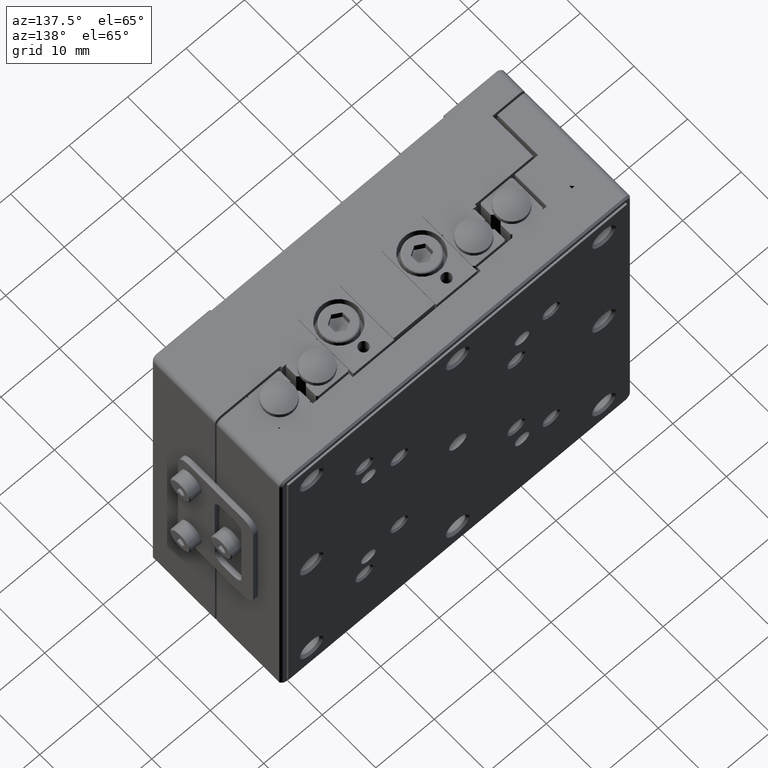
[diagram: clean part render]
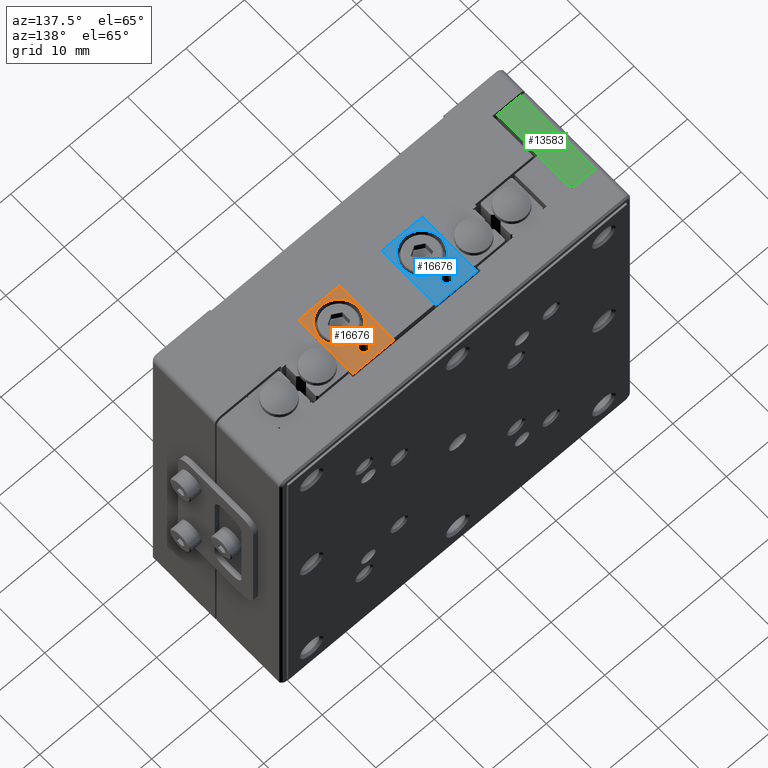
[diagram: same view with three faces highlighted in distinct colors, each labeled with its STEP entity id]
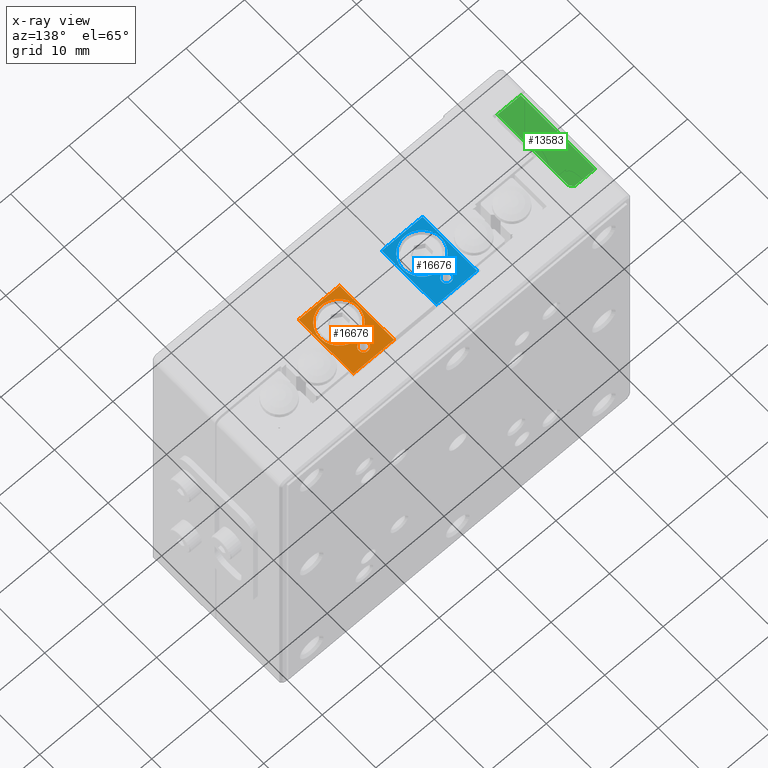
[diagram: x-ray of the same camera — body ghosted, the three highlighted faces saturated]
A machine part, auxiliary view with three faces highlighted in distinct colors.
The next image is the same camera in x-ray (body ghosted, the three faces saturated) — at least one of them is partly hidden behind the body in this view.
Their STEP definitions:

[orange] entity #16676 — the highlighted planar face has unit normal (0, 0, -1).
#175 = DIRECTION ( 'NONE',  ( 1.000000000000000000, 0.000000000000000000, 0.000000000000000000 ) ) ;
#435 = CARTESIAN_POINT ( 'NONE',  ( 3.500000000000000000, -5.100000000000000533, 5.000000000000000000 ) ) ;
#436 = LINE ( 'NONE', #8002, #14366 ) ;
#488 = DIRECTION ( 'NONE',  ( 0.000000000000000000, 0.000000000000000000, -1.000000000000000000 ) ) ;
#1071 = ORIENTED_EDGE ( 'NONE', *, *, #2716, .F. ) ;
#1307 = VERTEX_POINT ( 'NONE', #22662 ) ;
#1487 = VECTOR ( 'NONE', #11857, 1000.000000000000000 ) ;
#2049 = CARTESIAN_POINT ( 'NONE',  ( 0.000000000000000000, -1.399999999999999911, 5.000000000000000000 ) ) ;
#2052 = AXIS2_PLACEMENT_3D ( 'NONE', #7735, #2323, #175 ) ;
#2241 = VERTEX_POINT ( 'NONE', #18904 ) ;
#2323 = DIRECTION ( 'NONE',  ( 0.000000000000000000, 0.000000000000000000, 1.000000000000000000 ) ) ;
#2716 = EDGE_CURVE ( 'NONE', #8701, #10530, #23832, .T. ) ;
#3371 = DIRECTION ( 'NONE',  ( 0.000000000000000000, 0.000000000000000000, 1.000000000000000000 ) ) ;
#3379 = DIRECTION ( 'NONE',  ( 1.000000000000000000, 0.000000000000000000, 0.000000000000000000 ) ) ;
#3647 = AXIS2_PLACEMENT_3D ( 'NONE', #2049, #6193, #4065 ) ;
#4062 = DIRECTION ( 'NONE',  ( 0.000000000000000000, 1.000000000000000000, 0.000000000000000000 ) ) ;
#4065 = DIRECTION ( 'NONE',  ( 1.000000000000000000, 0.000000000000000000, 0.000000000000000000 ) ) ;
#4268 = FACE_OUTER_BOUND ( 'NONE', #9240, .T. ) ;
#4474 = ORIENTED_EDGE ( 'NONE', *, *, #12822, .T. ) ;
#4515 = CARTESIAN_POINT ( 'NONE',  ( 0.000000000000000000, 0.000000000000000000, 5.000000000000000000 ) ) ;
#4907 = LINE ( 'NONE', #24132, #11314 ) ;
#5162 = CARTESIAN_POINT ( 'NONE',  ( 3.500000000000000000, 5.100000000000000533, 5.000000000000000000 ) ) ;
#5553 = EDGE_CURVE ( 'NONE', #1307, #11457, #4907, .T. ) ;
#5799 = VERTEX_POINT ( 'NONE', #16119 ) ;
#6170 = EDGE_CURVE ( 'NONE', #10530, #8701, #6446, .T. ) ;
#6193 = DIRECTION ( 'NONE',  ( 0.000000000000000000, 0.000000000000000000, 1.000000000000000000 ) ) ;
#6423 = CARTESIAN_POINT ( 'NONE',  ( -3.500000000000000000, 5.100000000000000533, 5.000000000000000000 ) ) ;
#6446 = CIRCLE ( 'NONE', #20582, 0.8000000000000000444 ) ;
#6526 = EDGE_LOOP ( 'NONE', ( #13404, #1071 ) ) ;
#6544 = CARTESIAN_POINT ( 'NONE',  ( -3.500000000000000000, -5.100000000000000533, 5.000000000000000000 ) ) ;
#7629 = VERTEX_POINT ( 'NONE', #6423 ) ;
#7717 = EDGE_CURVE ( 'NONE', #7629, #1307, #23499, .T. ) ;
#7735 = CARTESIAN_POINT ( 'NONE',  ( 2.326828918379974816E-16, 3.200000000000000178, 5.000000000000000000 ) ) ;
#8002 = CARTESIAN_POINT ( 'NONE',  ( -3.500000000000000000, 5.100000000000000533, 5.000000000000000000 ) ) ;
#8622 = CIRCLE ( 'NONE', #14673, 3.250000000000000000 ) ;
#8701 = VERTEX_POINT ( 'NONE', #14660 ) ;
#9240 = EDGE_LOOP ( 'NONE', ( #13757, #4474, #11215, #15823 ) ) ;
#10227 = EDGE_CURVE ( 'NONE', #11457, #21690, #15417, .T. ) ;
#10299 = DIRECTION ( 'NONE',  ( 0.000000000000000000, -1.000000000000000000, 0.000000000000000000 ) ) ;
#10420 = EDGE_LOOP ( 'NONE', ( #24955, #21907 ) ) ;
#10530 = VERTEX_POINT ( 'NONE', #20332 ) ;
#11182 = CARTESIAN_POINT ( 'NONE',  ( 2.326828918379974816E-16, 3.200000000000000178, 5.000000000000000000 ) ) ;
#11215 = ORIENTED_EDGE ( 'NONE', *, *, #7717, .T. ) ;
#11314 = VECTOR ( 'NONE', #14513, 1000.000000000000000 ) ;
#11457 = VERTEX_POINT ( 'NONE', #435 ) ;
#11857 = DIRECTION ( 'NONE',  ( 0.000000000000000000, -1.000000000000000000, 0.000000000000000000 ) ) ;
#12084 = FACE_BOUND ( 'NONE', #6526, .T. ) ;
#12822 = EDGE_CURVE ( 'NONE', #21690, #7629, #436, .T. ) ;
#13339 = DIRECTION ( 'NONE',  ( 0.000000000000000000, 0.000000000000000000, 1.000000000000000000 ) ) ;
#13404 = ORIENTED_EDGE ( 'NONE', *, *, #6170, .F. ) ;
#13684 = DIRECTION ( 'NONE',  ( -1.000000000000000000, 0.000000000000000000, 0.000000000000000000 ) ) ;
#13757 = ORIENTED_EDGE ( 'NONE', *, *, #10227, .T. ) ;
#14123 = CIRCLE ( 'NONE', #3647, 3.250000000000000000 ) ;
#14366 = VECTOR ( 'NONE', #13684, 1000.000000000000000 ) ;
#14513 = DIRECTION ( 'NONE',  ( 1.000000000000000000, 0.000000000000000000, 0.000000000000000000 ) ) ;
#14660 = CARTESIAN_POINT ( 'NONE',  ( 0.8000000000000000444, 3.200000000000000178, 5.000000000000000000 ) ) ;
#14673 = AXIS2_PLACEMENT_3D ( 'NONE', #19126, #3371, #22815 ) ;
#15417 = LINE ( 'NONE', #21361, #21084 ) ;
#15823 = ORIENTED_EDGE ( 'NONE', *, *, #5553, .T. ) ;
#16119 = CARTESIAN_POINT ( 'NONE',  ( -3.250000000000000000, -1.399999999999999911, 5.000000000000000000 ) ) ;
#16676 = ADVANCED_FACE ( 'NONE', ( #4268, #18156, #12084 ), #21446, .F. ) ;
#18156 = FACE_BOUND ( 'NONE', #10420, .T. ) ;
#18904 = CARTESIAN_POINT ( 'NONE',  ( 3.250000000000000000, -1.399999999999999911, 5.000000000000000000 ) ) ;
#19126 = CARTESIAN_POINT ( 'NONE',  ( 0.000000000000000000, -1.399999999999999911, 5.000000000000000000 ) ) ;
#19318 = EDGE_CURVE ( 'NONE', #5799, #2241, #14123, .T. ) ;
#19733 = AXIS2_PLACEMENT_3D ( 'NONE', #4515, #488, #10299 ) ;
#20332 = CARTESIAN_POINT ( 'NONE',  ( -0.8000000000000000444, 3.200000000000000178, 5.000000000000000000 ) ) ;
#20396 = EDGE_CURVE ( 'NONE', #2241, #5799, #8622, .T. ) ;
#20582 = AXIS2_PLACEMENT_3D ( 'NONE', #11182, #13339, #3379 ) ;
#21084 = VECTOR ( 'NONE', #4062, 1000.000000000000000 ) ;
#21361 = CARTESIAN_POINT ( 'NONE',  ( 3.500000000000000000, -5.100000000000000533, 5.000000000000000000 ) ) ;
#21446 = PLANE ( 'NONE',  #19733 ) ;
#21690 = VERTEX_POINT ( 'NONE', #5162 ) ;
#21907 = ORIENTED_EDGE ( 'NONE', *, *, #19318, .F. ) ;
#22662 = CARTESIAN_POINT ( 'NONE',  ( -3.500000000000000000, -5.100000000000000533, 5.000000000000000000 ) ) ;
#22815 = DIRECTION ( 'NONE',  ( 1.000000000000000000, 0.000000000000000000, 0.000000000000000000 ) ) ;
#23499 = LINE ( 'NONE', #6544, #1487 ) ;
#23832 = CIRCLE ( 'NONE', #2052, 0.8000000000000000444 ) ;
#24132 = CARTESIAN_POINT ( 'NONE',  ( -3.500000000000000000, -5.100000000000000533, 5.000000000000000000 ) ) ;
#24955 = ORIENTED_EDGE ( 'NONE', *, *, #20396, .F. ) ;

[blue] entity #16676 — the highlighted planar face has unit normal (0, 0, -1).
#175 = DIRECTION ( 'NONE',  ( 1.000000000000000000, 0.000000000000000000, 0.000000000000000000 ) ) ;
#435 = CARTESIAN_POINT ( 'NONE',  ( 3.500000000000000000, -5.100000000000000533, 5.000000000000000000 ) ) ;
#436 = LINE ( 'NONE', #8002, #14366 ) ;
#488 = DIRECTION ( 'NONE',  ( 0.000000000000000000, 0.000000000000000000, -1.000000000000000000 ) ) ;
#1071 = ORIENTED_EDGE ( 'NONE', *, *, #2716, .F. ) ;
#1307 = VERTEX_POINT ( 'NONE', #22662 ) ;
#1487 = VECTOR ( 'NONE', #11857, 1000.000000000000000 ) ;
#2049 = CARTESIAN_POINT ( 'NONE',  ( 0.000000000000000000, -1.399999999999999911, 5.000000000000000000 ) ) ;
#2052 = AXIS2_PLACEMENT_3D ( 'NONE', #7735, #2323, #175 ) ;
#2241 = VERTEX_POINT ( 'NONE', #18904 ) ;
#2323 = DIRECTION ( 'NONE',  ( 0.000000000000000000, 0.000000000000000000, 1.000000000000000000 ) ) ;
#2716 = EDGE_CURVE ( 'NONE', #8701, #10530, #23832, .T. ) ;
#3371 = DIRECTION ( 'NONE',  ( 0.000000000000000000, 0.000000000000000000, 1.000000000000000000 ) ) ;
#3379 = DIRECTION ( 'NONE',  ( 1.000000000000000000, 0.000000000000000000, 0.000000000000000000 ) ) ;
#3647 = AXIS2_PLACEMENT_3D ( 'NONE', #2049, #6193, #4065 ) ;
#4062 = DIRECTION ( 'NONE',  ( 0.000000000000000000, 1.000000000000000000, 0.000000000000000000 ) ) ;
#4065 = DIRECTION ( 'NONE',  ( 1.000000000000000000, 0.000000000000000000, 0.000000000000000000 ) ) ;
#4268 = FACE_OUTER_BOUND ( 'NONE', #9240, .T. ) ;
#4474 = ORIENTED_EDGE ( 'NONE', *, *, #12822, .T. ) ;
#4515 = CARTESIAN_POINT ( 'NONE',  ( 0.000000000000000000, 0.000000000000000000, 5.000000000000000000 ) ) ;
#4907 = LINE ( 'NONE', #24132, #11314 ) ;
#5162 = CARTESIAN_POINT ( 'NONE',  ( 3.500000000000000000, 5.100000000000000533, 5.000000000000000000 ) ) ;
#5553 = EDGE_CURVE ( 'NONE', #1307, #11457, #4907, .T. ) ;
#5799 = VERTEX_POINT ( 'NONE', #16119 ) ;
#6170 = EDGE_CURVE ( 'NONE', #10530, #8701, #6446, .T. ) ;
#6193 = DIRECTION ( 'NONE',  ( 0.000000000000000000, 0.000000000000000000, 1.000000000000000000 ) ) ;
#6423 = CARTESIAN_POINT ( 'NONE',  ( -3.500000000000000000, 5.100000000000000533, 5.000000000000000000 ) ) ;
#6446 = CIRCLE ( 'NONE', #20582, 0.8000000000000000444 ) ;
#6526 = EDGE_LOOP ( 'NONE', ( #13404, #1071 ) ) ;
#6544 = CARTESIAN_POINT ( 'NONE',  ( -3.500000000000000000, -5.100000000000000533, 5.000000000000000000 ) ) ;
#7629 = VERTEX_POINT ( 'NONE', #6423 ) ;
#7717 = EDGE_CURVE ( 'NONE', #7629, #1307, #23499, .T. ) ;
#7735 = CARTESIAN_POINT ( 'NONE',  ( 2.326828918379974816E-16, 3.200000000000000178, 5.000000000000000000 ) ) ;
#8002 = CARTESIAN_POINT ( 'NONE',  ( -3.500000000000000000, 5.100000000000000533, 5.000000000000000000 ) ) ;
#8622 = CIRCLE ( 'NONE', #14673, 3.250000000000000000 ) ;
#8701 = VERTEX_POINT ( 'NONE', #14660 ) ;
#9240 = EDGE_LOOP ( 'NONE', ( #13757, #4474, #11215, #15823 ) ) ;
#10227 = EDGE_CURVE ( 'NONE', #11457, #21690, #15417, .T. ) ;
#10299 = DIRECTION ( 'NONE',  ( 0.000000000000000000, -1.000000000000000000, 0.000000000000000000 ) ) ;
#10420 = EDGE_LOOP ( 'NONE', ( #24955, #21907 ) ) ;
#10530 = VERTEX_POINT ( 'NONE', #20332 ) ;
#11182 = CARTESIAN_POINT ( 'NONE',  ( 2.326828918379974816E-16, 3.200000000000000178, 5.000000000000000000 ) ) ;
#11215 = ORIENTED_EDGE ( 'NONE', *, *, #7717, .T. ) ;
#11314 = VECTOR ( 'NONE', #14513, 1000.000000000000000 ) ;
#11457 = VERTEX_POINT ( 'NONE', #435 ) ;
#11857 = DIRECTION ( 'NONE',  ( 0.000000000000000000, -1.000000000000000000, 0.000000000000000000 ) ) ;
#12084 = FACE_BOUND ( 'NONE', #6526, .T. ) ;
#12822 = EDGE_CURVE ( 'NONE', #21690, #7629, #436, .T. ) ;
#13339 = DIRECTION ( 'NONE',  ( 0.000000000000000000, 0.000000000000000000, 1.000000000000000000 ) ) ;
#13404 = ORIENTED_EDGE ( 'NONE', *, *, #6170, .F. ) ;
#13684 = DIRECTION ( 'NONE',  ( -1.000000000000000000, 0.000000000000000000, 0.000000000000000000 ) ) ;
#13757 = ORIENTED_EDGE ( 'NONE', *, *, #10227, .T. ) ;
#14123 = CIRCLE ( 'NONE', #3647, 3.250000000000000000 ) ;
#14366 = VECTOR ( 'NONE', #13684, 1000.000000000000000 ) ;
#14513 = DIRECTION ( 'NONE',  ( 1.000000000000000000, 0.000000000000000000, 0.000000000000000000 ) ) ;
#14660 = CARTESIAN_POINT ( 'NONE',  ( 0.8000000000000000444, 3.200000000000000178, 5.000000000000000000 ) ) ;
#14673 = AXIS2_PLACEMENT_3D ( 'NONE', #19126, #3371, #22815 ) ;
#15417 = LINE ( 'NONE', #21361, #21084 ) ;
#15823 = ORIENTED_EDGE ( 'NONE', *, *, #5553, .T. ) ;
#16119 = CARTESIAN_POINT ( 'NONE',  ( -3.250000000000000000, -1.399999999999999911, 5.000000000000000000 ) ) ;
#16676 = ADVANCED_FACE ( 'NONE', ( #4268, #18156, #12084 ), #21446, .F. ) ;
#18156 = FACE_BOUND ( 'NONE', #10420, .T. ) ;
#18904 = CARTESIAN_POINT ( 'NONE',  ( 3.250000000000000000, -1.399999999999999911, 5.000000000000000000 ) ) ;
#19126 = CARTESIAN_POINT ( 'NONE',  ( 0.000000000000000000, -1.399999999999999911, 5.000000000000000000 ) ) ;
#19318 = EDGE_CURVE ( 'NONE', #5799, #2241, #14123, .T. ) ;
#19733 = AXIS2_PLACEMENT_3D ( 'NONE', #4515, #488, #10299 ) ;
#20332 = CARTESIAN_POINT ( 'NONE',  ( -0.8000000000000000444, 3.200000000000000178, 5.000000000000000000 ) ) ;
#20396 = EDGE_CURVE ( 'NONE', #2241, #5799, #8622, .T. ) ;
#20582 = AXIS2_PLACEMENT_3D ( 'NONE', #11182, #13339, #3379 ) ;
#21084 = VECTOR ( 'NONE', #4062, 1000.000000000000000 ) ;
#21361 = CARTESIAN_POINT ( 'NONE',  ( 3.500000000000000000, -5.100000000000000533, 5.000000000000000000 ) ) ;
#21446 = PLANE ( 'NONE',  #19733 ) ;
#21690 = VERTEX_POINT ( 'NONE', #5162 ) ;
#21907 = ORIENTED_EDGE ( 'NONE', *, *, #19318, .F. ) ;
#22662 = CARTESIAN_POINT ( 'NONE',  ( -3.500000000000000000, -5.100000000000000533, 5.000000000000000000 ) ) ;
#22815 = DIRECTION ( 'NONE',  ( 1.000000000000000000, 0.000000000000000000, 0.000000000000000000 ) ) ;
#23499 = LINE ( 'NONE', #6544, #1487 ) ;
#23832 = CIRCLE ( 'NONE', #2052, 0.8000000000000000444 ) ;
#24132 = CARTESIAN_POINT ( 'NONE',  ( -3.500000000000000000, -5.100000000000000533, 5.000000000000000000 ) ) ;
#24955 = ORIENTED_EDGE ( 'NONE', *, *, #20396, .F. ) ;

[green] entity #13583 — the highlighted planar face has unit normal (0, -0, 1).
#252 = LINE ( 'NONE', #12227, #2302 ) ;
#696 = ORIENTED_EDGE ( 'NONE', *, *, #23715, .F. ) ;
#1057 = CARTESIAN_POINT ( 'NONE',  ( 26.25000000000000000, -25.00000000000000000, 6.924999999999999822 ) ) ;
#1915 = CARTESIAN_POINT ( 'NONE',  ( 26.25000000000000000, -29.00000000000000000, 6.924999999999999822 ) ) ;
#2222 = VECTOR ( 'NONE', #10360, 1000.000000000000000 ) ;
#2302 = VECTOR ( 'NONE', #16002, 1000.000000000000000 ) ;
#3057 = LINE ( 'NONE', #1057, #2222 ) ;
#3179 = VECTOR ( 'NONE', #24471, 1000.000000000000114 ) ;
#3440 = CARTESIAN_POINT ( 'NONE',  ( 26.25000000000000000, -25.50000000000000000, 6.924999999999999822 ) ) ;
#3537 = EDGE_CURVE ( 'NONE', #8863, #19909, #15059, .T. ) ;
#3591 = EDGE_LOOP ( 'NONE', ( #696, #4233, #17278, #10103, #14220 ) ) ;
#3691 = VECTOR ( 'NONE', #24919, 1000.000000000000000 ) ;
#4233 = ORIENTED_EDGE ( 'NONE', *, *, #3537, .T. ) ;
#4293 = AXIS2_PLACEMENT_3D ( 'NONE', #20813, #24980, #21056 ) ;
#4869 = EDGE_CURVE ( 'NONE', #12083, #22531, #20543, .T. ) ;
#5517 = FACE_OUTER_BOUND ( 'NONE', #3591, .T. ) ;
#8244 = VERTEX_POINT ( 'NONE', #22668 ) ;
#8863 = VERTEX_POINT ( 'NONE', #1915 ) ;
#10103 = ORIENTED_EDGE ( 'NONE', *, *, #22365, .F. ) ;
#10360 = DIRECTION ( 'NONE',  ( 0.000000000000000000, 0.000000000000000000, -1.000000000000000000 ) ) ;
#10655 = CARTESIAN_POINT ( 'NONE',  ( 26.25000000000000000, -29.00000000000000000, -6.975000000000000533 ) ) ;
#11068 = PLANE ( 'NONE',  #4293 ) ;
#12083 = VERTEX_POINT ( 'NONE', #16258 ) ;
#12227 = CARTESIAN_POINT ( 'NONE',  ( 26.25000000000000000, -30.00000000000000000, -6.975000000000000533 ) ) ;
#13199 = EDGE_CURVE ( 'NONE', #19909, #8244, #252, .T. ) ;
#13294 = CARTESIAN_POINT ( 'NONE',  ( 26.25000000000000000, -29.00000000000000000, -6.975000000000000533 ) ) ;
#13583 = ADVANCED_FACE ( 'NONE', ( #5517 ), #11068, .T. ) ;
#14220 = ORIENTED_EDGE ( 'NONE', *, *, #4869, .T. ) ;
#14464 = DIRECTION ( 'NONE',  ( 0.000000000000000000, 1.000000000000000000, 0.000000000000000000 ) ) ;
#14599 = VECTOR ( 'NONE', #14464, 1000.000000000000000 ) ;
#15059 = LINE ( 'NONE', #13294, #3691 ) ;
#16002 = DIRECTION ( 'NONE',  ( 0.000000000000000000, 1.000000000000000000, 0.000000000000000000 ) ) ;
#16097 = CARTESIAN_POINT ( 'NONE',  ( 26.25000000000000000, -30.00000000000000000, 6.924999999999999822 ) ) ;
#16258 = CARTESIAN_POINT ( 'NONE',  ( 26.25000000000000000, -25.00000000000000000, 6.424999999999999822 ) ) ;
#16751 = CARTESIAN_POINT ( 'NONE',  ( 26.25000000000000000, -27.75000000000000000, 9.175000000000000711 ) ) ;
#17278 = ORIENTED_EDGE ( 'NONE', *, *, #13199, .T. ) ;
#19772 = LINE ( 'NONE', #16097, #14599 ) ;
#19909 = VERTEX_POINT ( 'NONE', #10655 ) ;
#20543 = LINE ( 'NONE', #16751, #3179 ) ;
#20813 = CARTESIAN_POINT ( 'NONE',  ( 26.25000000000000000, -30.00000000000000000, 6.924999999999999822 ) ) ;
#21056 = DIRECTION ( 'NONE',  ( 0.000000000000000000, 1.000000000000000000, 0.000000000000000000 ) ) ;
#22365 = EDGE_CURVE ( 'NONE', #12083, #8244, #3057, .T. ) ;
#22531 = VERTEX_POINT ( 'NONE', #3440 ) ;
#22668 = CARTESIAN_POINT ( 'NONE',  ( 26.25000000000000000, -25.00000000000000000, -6.975000000000000533 ) ) ;
#23715 = EDGE_CURVE ( 'NONE', #8863, #22531, #19772, .T. ) ;
#24471 = DIRECTION ( 'NONE',  ( 0.000000000000000000, -0.7071067811865474617, 0.7071067811865474617 ) ) ;
#24919 = DIRECTION ( 'NONE',  ( 0.000000000000000000, 0.000000000000000000, -1.000000000000000000 ) ) ;
#24980 = DIRECTION ( 'NONE',  ( 1.000000000000000000, 0.000000000000000000, 0.000000000000000000 ) ) ;